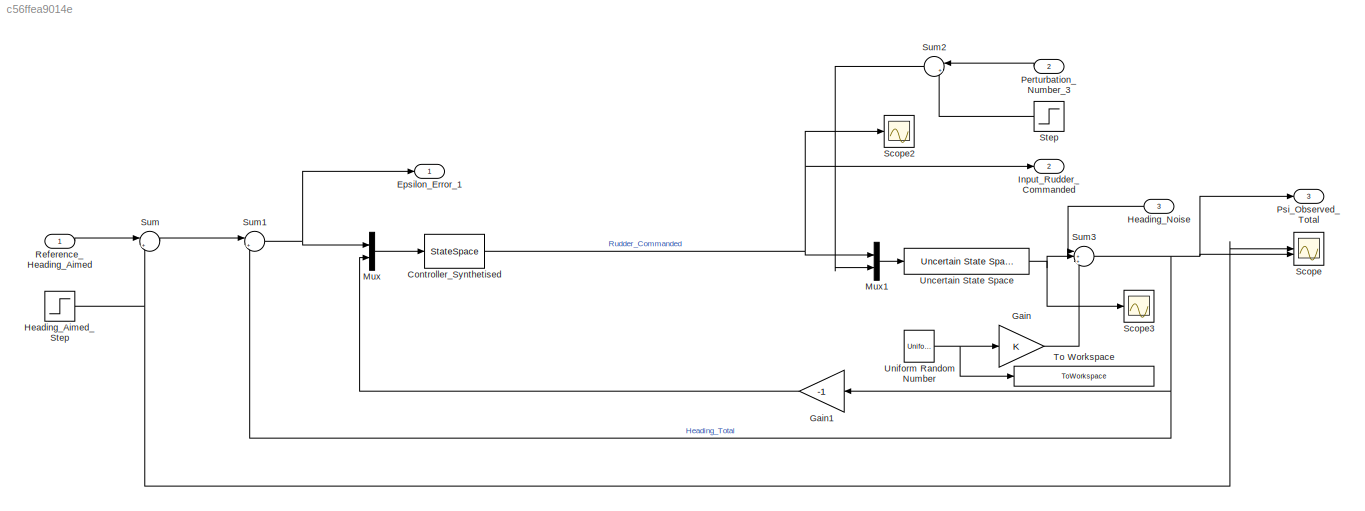
MODEL slx_c56ffea9014e
KIND model
CONFIG AbsTol = auto
CONFIG EnableMultiTasking = off
CONFIG FixedStep = auto
CONFIG MaxStep = auto
CONFIG MinStep = auto
CONFIG RelTol = 1e-3
CONFIG SampleTimeConstraint = Unconstrained
CONFIG SolverName = VariableStepAuto
CONFIG StartTime = 0.0
CONFIG StopTime = 50
BLOCK [StateSpace] Controller_Synthetised
  A = State_Matrix_Controller_Nominal
  B = Input_Matrix_Controller_Nominal
  C = Measurement_Matrix_Controller_Nominal
  D = Input_Measurement_Matrix_Controller_Nominal
  InitialCondition = 0
BLOCK [Outport] Epsilon_Error_1
BLOCK [Gain] Gain
  OutDataTypeStr = Inherit: Same as input
  ParamDataTypeStr = Inherit: Same as input
  SaturateOnIntegerOverflow = on
BLOCK [Gain] Gain1
  Gain = -1
  OutDataTypeStr = Inherit: Same as input
  ParamDataTypeStr = Inherit: Same as input
  SaturateOnIntegerOverflow = on
BLOCK [Step] Heading_Aimed_Step
  After = Step_Heading_Aimed
  SampleTime = 0
  Time = 0
BLOCK [Inport] Heading_Noise
  Port = 3
BLOCK [Outport] Input_Rudder_Commanded
  Port = 2
BLOCK [Mux] Mux
  DisplayOption = bar
  Inputs = 2
BLOCK [Mux] Mux1
  DisplayOption = bar
  Inputs = 2
BLOCK [Inport] Perturbation_Number_3
  Port = 2
BLOCK [Outport] Psi_Observed_Total
  Port = 3
BLOCK [Inport] Reference_Heading_Aimed
BLOCK [Scope] Scope
  Floating = off
  NumInputPorts = 2
  ScopeSpecificationString = Simulink.scopes.TimeScopeBlockCfg('CurrentConfiguration', extmgr.ConfigurationSet(extmgr.Configuration('Core','General UI',true),extmgr.Configuration('Core','Source UI',true),extmgr.Configuration('Sources','WiredSimulink',true),extmgr.Configuration('Visuals','Time Domain',true,'SerializedDisplays',{struct('MinYLimReal','-0.0875','MaxYLimReal','0.6158','YLabelReal','','MinYLimMag','0.00000','MaxYLi...<+1514ch>
BLOCK [Scope] Scope2
  Floating = off
  NumInputPorts = 1
  ScopeSpecificationString = Simulink.scopes.TimeScopeBlockCfg('CurrentConfiguration', extmgr.ConfigurationSet(extmgr.Configuration('Core','General UI',true),extmgr.Configuration('Core','Source UI',true),extmgr.Configuration('Sources','WiredSimulink',true,'DataLoggingVariableName','ScopeData1'),extmgr.Configuration('Visuals','Time Domain',true,'SerializedDisplays',{struct('MinYLimReal','-2.34113','MaxYLimReal','1.87459','YLab...<+1508ch>
BLOCK [Scope] Scope3
  Floating = off
  NumInputPorts = 1
  ScopeSpecificationString = Simulink.scopes.TimeScopeBlockCfg('CurrentConfiguration', extmgr.ConfigurationSet(extmgr.Configuration('Core','General UI',true),extmgr.Configuration('Core','Source UI',true),extmgr.Configuration('Sources','WiredSimulink',true,'DataLoggingVariableName','ScopeData1'),extmgr.Configuration('Visuals','Time Domain',true,'SerializedDisplays',{struct('MinYLimReal','-0.14315','MaxYLimReal','1.28836','YLab...<+1458ch>
BLOCK [Step] Step
  After = Perturbation_Step
  NameLocation = top
  SampleTime = 0
  Time = 10
BLOCK [Sum] Sum
  Inputs = |++
BLOCK [Sum] Sum1
  Inputs = |+-
BLOCK [Sum] Sum2
  Inputs = |++
BLOCK [Sum] Sum3
  Inputs = |+++
BLOCK [ToWorkspace] To Workspace
  FixptAsFi = on
  MaxDataPoints = inf
  SampleTime = -1
  SaveFormat = Timeseries
  VariableName = Noise_Heading_Generated
BLOCK [Reference] Uncertain State Space  REF=RCTblocks/Uncertain State Space
  SourceBlock = RCTblocks/Uncertain State Space
  SourceType = Uncertain State Space Block
  Tag = USS
BLOCK [UniformRandomNumber] Uniform Random Number
  Maximum = Heading_Variance_Noise
  Minimum = -Heading_Variance_Noise
  SampleTime = 1e-2
NET Controller_Synthetised:1 -> Input_Rudder_Commanded:1, Mux1:1, Scope2:1
LINE Gain1:1 -> Mux:2
LINE Gain:1 -> Sum3:3
NET Heading_Aimed_Step:1 -> Scope:1, Sum:2
LINE Heading_Noise:1 -> Sum3:1
LINE Mux1:1 -> Uncertain State Space:1
LINE Mux:1 -> Controller_Synthetised:1
LINE Perturbation_Number_3:1 -> Sum2:1
LINE Reference_Heading_Aimed:1 -> Sum:1
LINE Step:1 -> Sum2:2
NET Sum1:1 -> Epsilon_Error_1:1, Mux:1
LINE Sum2:1 -> Mux1:2
NET Sum3:1 -> Gain1:1, Psi_Observed_Total:1, Scope:2, Sum1:2
LINE Sum:1 -> Sum1:1
NET Uncertain State Space:1 -> Scope3:1, Sum3:2
NET Uniform Random Number:1 -> Gain:1, To Workspace:1
note: NET lines group one-source signal fan-out (src -> all destinations, sorted); 1:1 wires keep LINE
